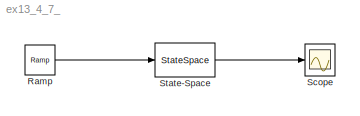
MODEL ex13_4_7_
KIND model
BLOCK [Reference] Ramp  REF=simulink/Sources/Ramp
  Ports = [0, 1]
  SID = 1
  SourceBlock = simulink/Sources/Ramp
  SourceType = Ramp
  VectorParams1D = on
  X0 = 0
  slope = 1
  start = 0
BLOCK [Scope] Scope
  DataFormat = StructureWithTime
  Floating = off
  NumInputPorts = 1
  Ports = [1]
  SID = 3
  SampleTime = 0
  ShowLegends = off
BLOCK [StateSpace] State-Space
  A = [0 1; -1 -1]
  B = [0; 1]
  C = [1 0]
  D = 0
  SID = 2
LINE Ramp:1 -> State-Space:1
LINE State-Space:1 -> Scope:1
